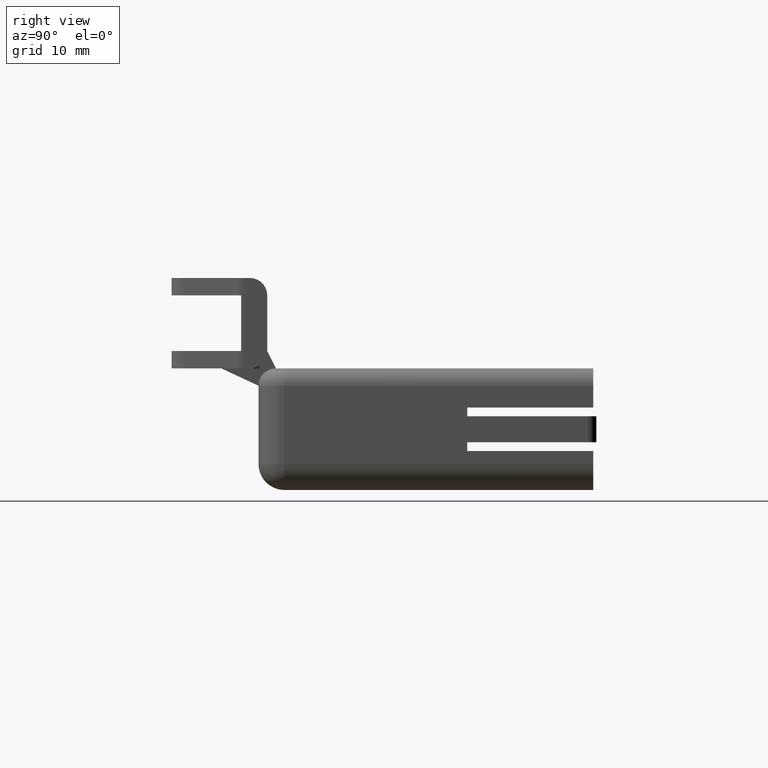
[diagram: clean part render]
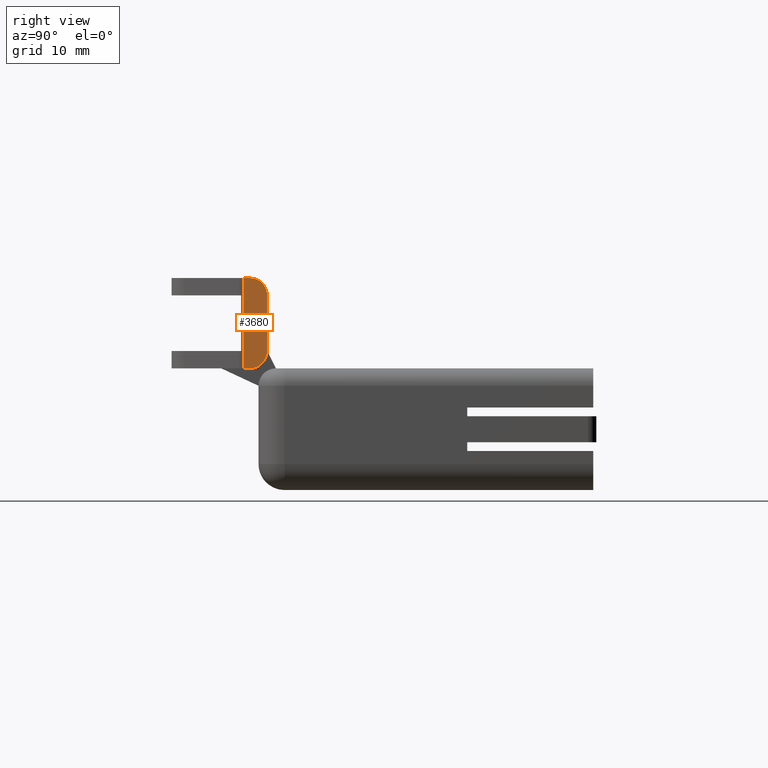
[diagram: same view with one face highlighted and labeled with its STEP entity id]
A machine part, right view. The second image highlights one B-rep face of the part: STEP entity #3680.
In plain terms, the highlighted planar face has unit normal (1, 0, 0).
Its self-contained STEP definition (entity closure, byte-faithful):
#546=CIRCLE('',#3902,0.2);
#582=CIRCLE('',#3978,0.2);
#867=VERTEX_POINT('',#5833);
#868=VERTEX_POINT('',#5835);
#876=VERTEX_POINT('',#5851);
#922=VERTEX_POINT('',#6002);
#923=VERTEX_POINT('',#6004);
#940=VERTEX_POINT('',#6051);
#1179=VECTOR('',#4542,1.);
#1227=VECTOR('',#4696,1.);
#1242=VECTOR('',#4732,1.);
#1243=VECTOR('',#4736,1.);
#1494=LINE('',#5834,#1179);
#1542=LINE('',#6003,#1227);
#1557=LINE('',#6047,#1242);
#1558=LINE('',#6050,#1243);
#1933=EDGE_CURVE('',#868,#867,#1494,.T.);
#1943=EDGE_CURVE('',#876,#867,#546,.T.);
#2027=EDGE_CURVE('',#923,#922,#1542,.T.);
#2050=EDGE_CURVE('',#868,#922,#1557,.T.);
#2052=EDGE_CURVE('',#876,#940,#1558,.T.);
#2053=EDGE_CURVE('',#923,#940,#582,.T.);
#2957=ORIENTED_EDGE('',*,*,#2050,.F.);
#2958=ORIENTED_EDGE('',*,*,#1933,.T.);
#2959=ORIENTED_EDGE('',*,*,#1943,.F.);
#2960=ORIENTED_EDGE('',*,*,#2052,.T.);
#2961=ORIENTED_EDGE('',*,*,#2053,.F.);
#2962=ORIENTED_EDGE('',*,*,#2027,.T.);
#3290=EDGE_LOOP('',(#2957,#2958,#2959,#2960,#2961,#2962));
#3486=FACE_BOUND('',#3290,.T.);
#3680=ADVANCED_FACE('',(#3486),#6251,.T.);
#3902=AXIS2_PLACEMENT_3D('',#5852,#4555,#4556);
#3977=AXIS2_PLACEMENT_3D('',#6049,#4735,$);
#3978=AXIS2_PLACEMENT_3D('',#6052,#4737,#4738);
#4542=DIRECTION('',(0.,1.,0.));
#4555=DIRECTION('',(-1.,0.,0.));
#4556=DIRECTION('',(5.44735249506578E-034,0.14142135623731,-0.14142135623731));
#4696=DIRECTION('',(0.,-1.,0.));
#4732=DIRECTION('',(0.,5.19556878622687E-016,1.));
#4735=DIRECTION('',(1.,0.,0.));
#4736=DIRECTION('',(0.,0.,1.));
#4737=DIRECTION('',(-1.,0.,0.));
#4738=DIRECTION('',(-2.72367624753289E-034,0.14142135623731,0.141421356237309));
#5833=CARTESIAN_POINT('',(3.2,-0.2,8.99415124040544E-033));
#5834=CARTESIAN_POINT('',(3.2,-0.3,8.99415124040544E-033));
#5835=CARTESIAN_POINT('',(3.2,-0.268323111935094,8.99415124040544E-033));
#5851=CARTESIAN_POINT('',(3.2,-5.55111512312578E-017,0.2));
#5852=CARTESIAN_POINT('',(3.2,-0.2,0.2));
#6002=CARTESIAN_POINT('',(3.2,-0.268323111935094,1.04));
#6003=CARTESIAN_POINT('',(3.2,-0.3,1.04));
#6004=CARTESIAN_POINT('',(3.2,-0.2,1.04));
#6047=CARTESIAN_POINT('',(3.2,-0.268323111935094,3.66574218622756E-016));
#6049=CARTESIAN_POINT('',(3.2,-0.15,8.99415124040544E-033));
#6050=CARTESIAN_POINT('',(3.2,-5.55111512312578E-017,8.99415124040544E-033));
#6051=CARTESIAN_POINT('',(3.2,-5.55111512312578E-017,0.84));
#6052=CARTESIAN_POINT('',(3.2,-0.2,0.84));
#6251=PLANE('',#3977);